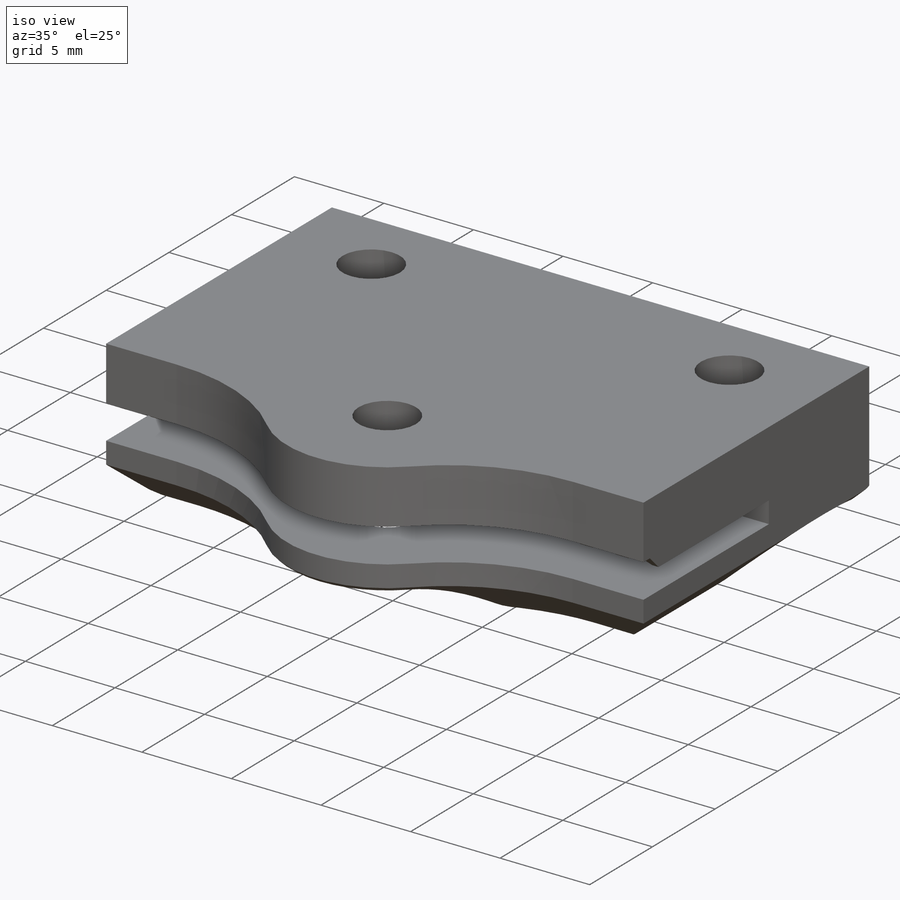
[diagram: iso view]
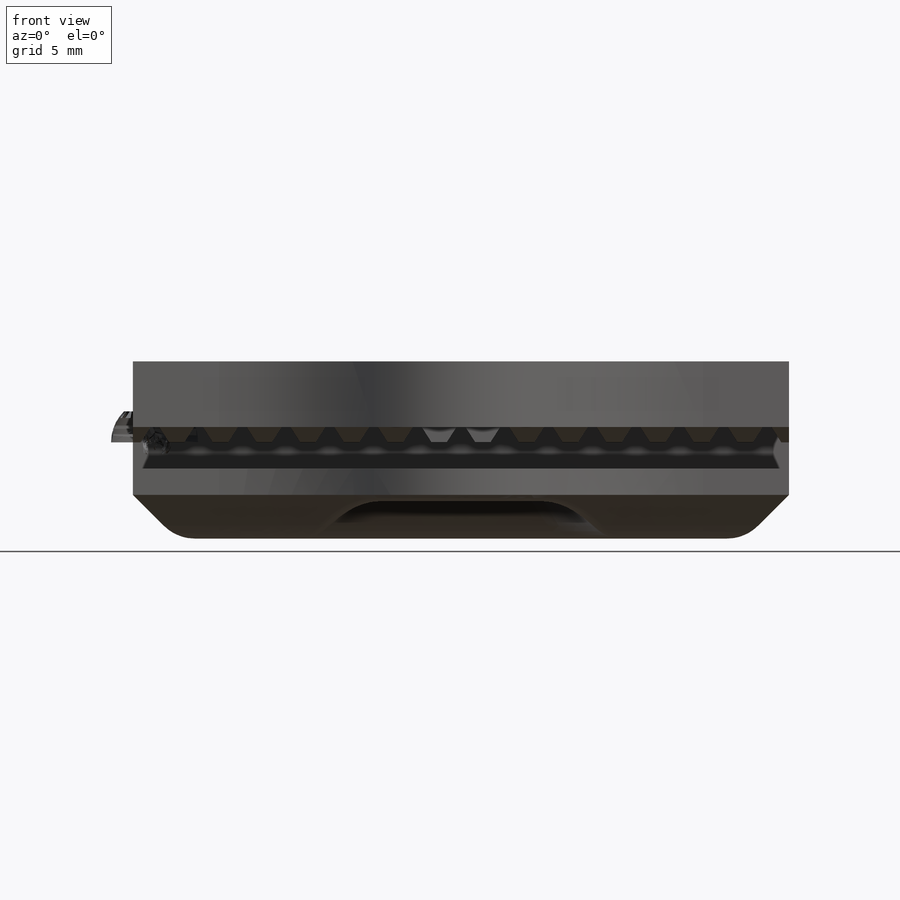
[diagram: front view]
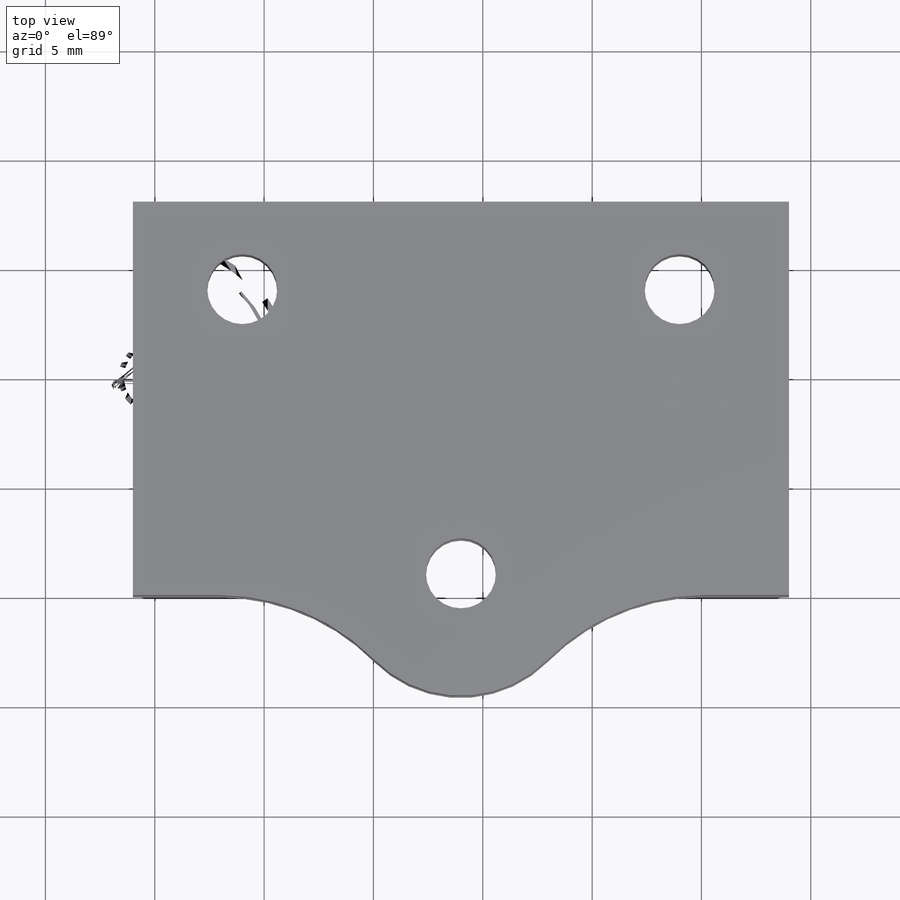
[diagram: top view]
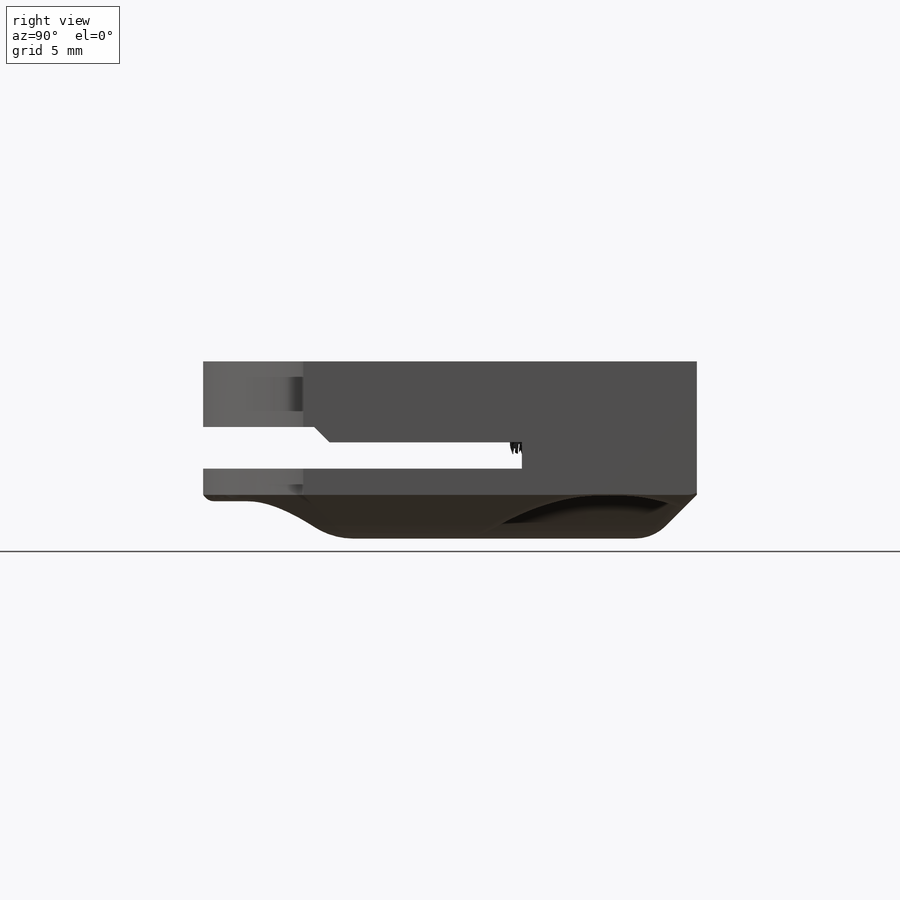
[diagram: right view]
SOLIDWORKS PART (.sldprt)
format: sldprt  version: not decoded by parser v0  size: 823,296 bytes
history: native  units: mm
features: sketch x9, extrude x5, cut_extrude x4, fillet x3, material x1, plane x1 (+13 scaffold rows collapsed)
feature tree (36):
  scaffold x13  (default folders/planes/origin — collapsed)
  material  "ABS"
  sketch  "Sketch1"  dims[c1.D1=0.4mm c1.D2=0.35mm c1.D3=1.2mm c1.D4=0.7mm c1.D5=0.35mm c1.D6=2.0mm c1.D7=~1.999987mm c2.D3=1.2mm c2.D7=3.1mm c2.D8=3.0mm c2.D10=2.0mm c2.D9=15.0]
  extrude  "Boss-Extrude1"  Depth=10mm
  sketch  "Sketch2"
  extrude  "Boss-Extrude2"  Depth=8mm
  sketch  "Sketch3"  dims[c1.D2=~2.981457mm c1.D3=3.2mm c1.D1=4.0mm c2.D2=20.0mm]
  cut_extrude  "Cut-Extrude1"  [1 undecoded]
  plane  "Plane1"
  sketch  "Sketch4"  dims[D1=~2.187258mm D2=4.0mm D3=4.5mm]
  extrude  "Boss-Extrude3"  [1 undecoded]
  sketch  "Sketch5"
  extrude  "Boss-Extrude4"  [1 undecoded]
  sketch  "Sketch6"  dims[c1.D1=~1.037254mm c2.D1=135.0deg]
  cut_extrude  "Cut-Extrude2"  [1 undecoded]
  cut_extrude  "Cut-Extrude3"  [1 undecoded]
  sketch  "Sketch4<4>"
  sketch  "Sketch7"  dims[D1=4.0mm D2=4.0mm]
  cut_extrude  "Cut-Extrude4"  [1 undecoded]
  fillet  "Fillet2"  Radius=10mm
  sketch  "Sketch8"  dims[D1=0.0mm D2=3.0mm]
  extrude  "Boss-Extrude5"  Depth=2mm
  fillet  "Fillet3"  Radius=2mm
  fillet  "Fillet4"  Radius=0.5mm
decode coverage: 12 of 21 modeling features carry decoded parameters
note: ~ marks probable driven/reference dimensions
note: 6 parameter values undecoded
summary: no parameter record found for 6 features
note: suppression state not decoded; provenance and decode notes live in map.json
